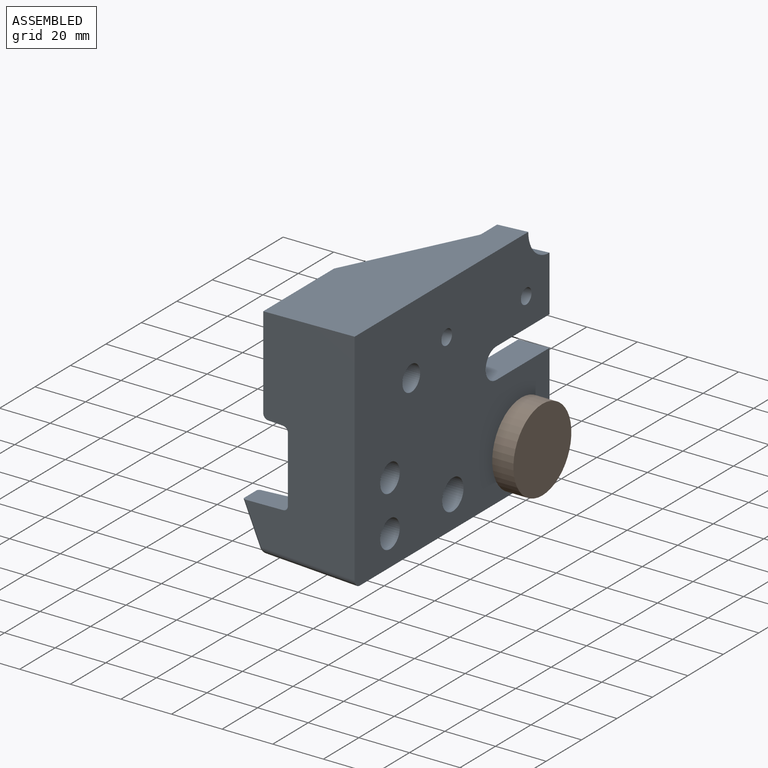
[diagram: assembled view]
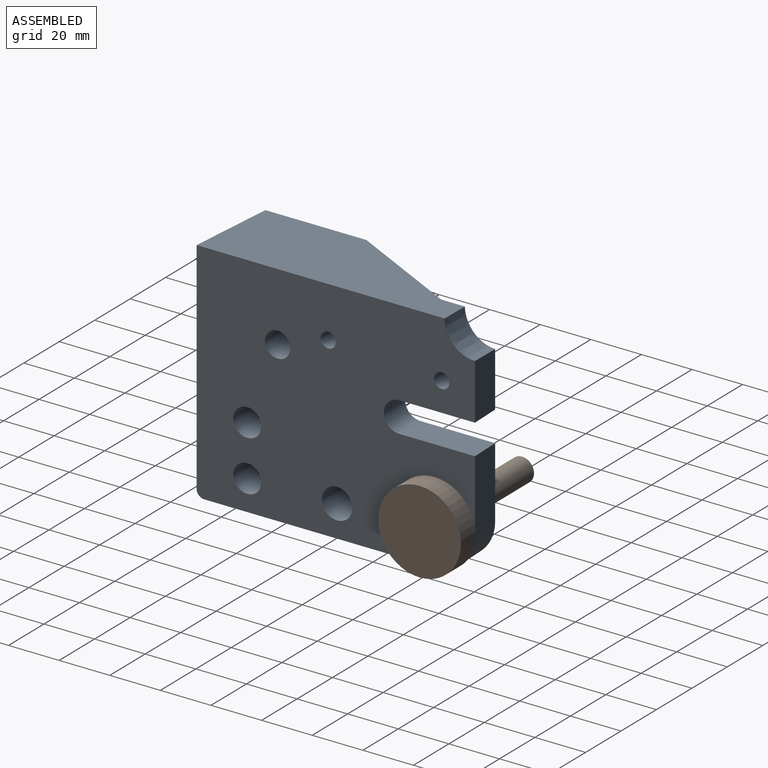
[diagram: assembled view, second angle]
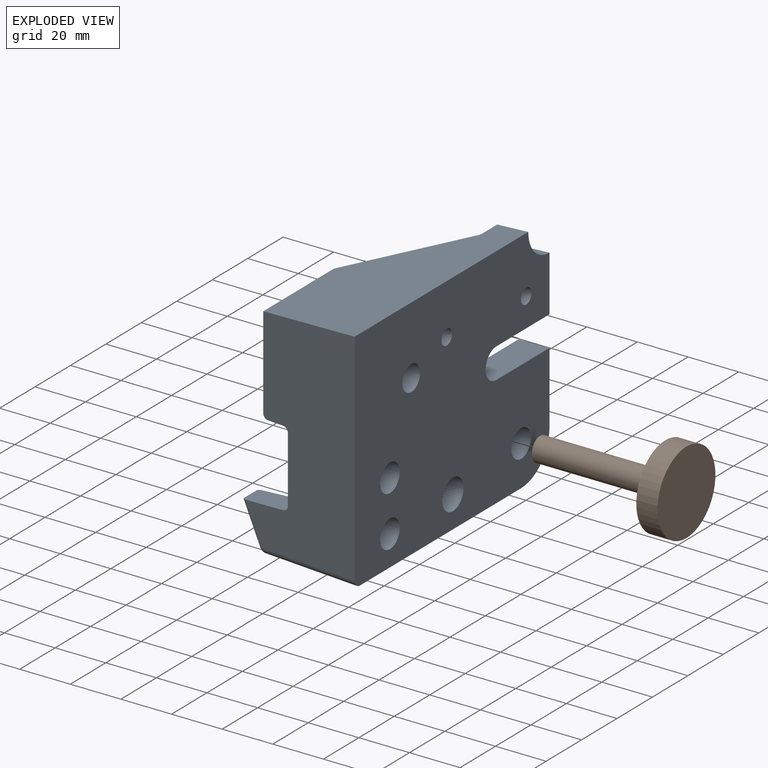
[diagram: exploded view]
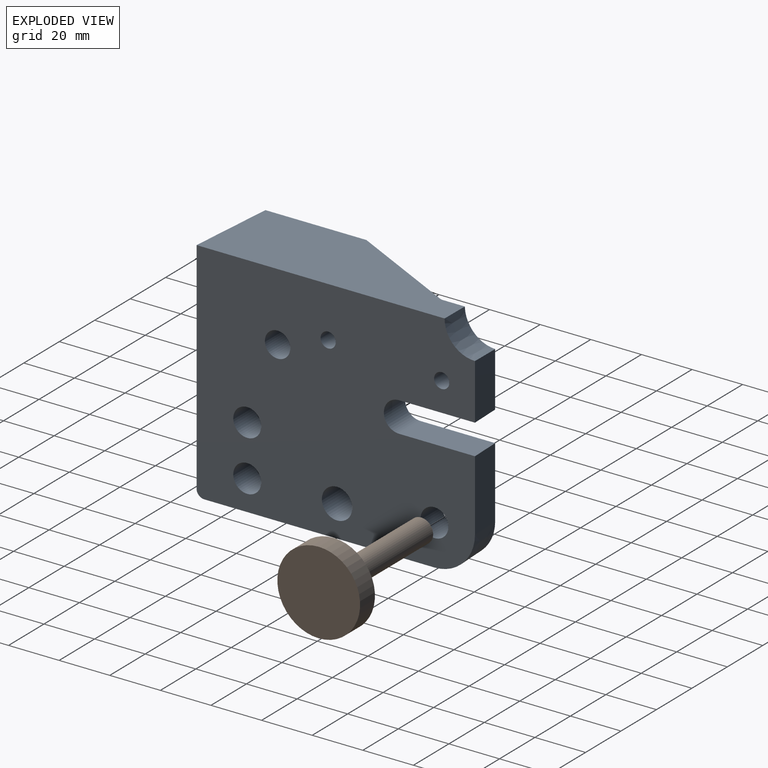
[diagram: exploded view, second angle]
ASSEMBLY  parts=2 mates=2
PART A: 70 faces, bbox 46.1x110.7x94.1 mm
  f0: cylinder r=1mm len=6.34mm, axis (0,-1,0), area 6.6mm2, adj f1,f3,f4,f7
  f1: bspline ~3.03x2.97mm, area 5.3mm2, adj f0,f2,f6,f7
  f2: cylinder r=1mm len=15.84mm, axis (0.4,-0.01,-0.92), area 25.6mm2, adj f1,f7,f8,f66
  f3: cylinder r=1mm len=18.88mm, axis (0.4,0.01,-0.92), area 29.9mm2, adj f0,f4,f5,f7,f8
  f4: plane 91.68x37.62mm, normal (-0.03,0,-1), area 1392mm2, adj f0,f3,f5,f6,f24,f25,f26,f32
  f5: plane 75.58x30.51mm, normal (-0.03,1,0), area 1495.2mm2, adj f3,f4,f8,f10,f11,f12,f13,f14
  f6: cylinder r=3mm len=37.87mm, axis (1,-0.03,-0.03), area 176.2mm2, adj f1,f4,f66,f69
  f7: plane 18.16x8.29mm, normal (-0.92,0,-0.4), area 135.3mm2, adj f0,f1,f2,f3,f8
  f8: plane 16.61x10.13mm, normal (-0.03,0,1), area 154.4mm2, adj f2,f3,f5,f7,f12,f66
  f9: cylinder r=3mm len=12mm, axis (1,0,0), area 226.2mm2, adj f25,f69
  f10: cylinder r=2mm len=9.55mm, axis (0,-1,0), area 29.1mm2, adj f5,f11,f60,f66
  f11: plane 9.98x6.11mm, normal (-0.03,0,-1), area 59.7mm2, adj f5,f10,f14,f66
  f12: cylinder r=2mm len=10.11mm, axis (0,1,0), area 30.9mm2, adj f5,f8,f13,f66
  f13: plane 26.14x10.11mm, normal (-1,0,0), area 264.3mm2, adj f5,f12,f14,f66
  f14: cylinder r=2mm len=10.11mm, axis (0,1,0), area 30.9mm2, adj f5,f11,f13,f66
  f15: cylinder r=2mm len=13.09mm, axis (0,0,-1), area 12.3mm2, adj f16,f25,f36,f44
  f16: cylinder r=2mm len=42.71mm, axis (0,-1,0), area 125.4mm2, adj f15,f17,f25,f34,f44
  f17: torus R=0.49mm, axis (1,0,0), area 8.4mm2, adj f16,f18,f25,f39
  f18: cylinder r=2mm len=13mm, axis (0,0,-1), area 39.9mm2, adj f17,f19,f25,f42
  f19: torus R=13.51mm, axis (-1,0,0), area 118mm2, adj f18,f20,f25,f45
  f20: cylinder r=2mm len=13.13mm, axis (0,-0.01,1), area 40.3mm2, adj f19,f21,f25,f40
  f21: torus R=0.49mm, axis (1,0,0), area 8.4mm2, adj f20,f22,f25,f35
  f22: cylinder r=2mm len=3.9mm, axis (0,-1,0), area 12mm2, adj f21,f23,f25,f34
  f23: torus R=0.49mm, axis (1,0,0), area 8.4mm2, adj f22,f24,f25,f43
  f24: cylinder r=2mm len=75.58mm, axis (0,0,-1), area 232.1mm2, adj f4,f5,f23,f25
  f25: plane 96.07x89.16mm, normal (-1,0,0), area 5291.6mm2, adj f4,f9,f15,f16,f17,f18,f19,f20
  f26: torus R=4.51mm, axis (-1,0,0), area 10.4mm2, adj f4,f25,f27,f46
  f27: cylinder r=2mm len=19mm, axis (0,0,1), area 58.4mm2, adj f25,f26,f28,f47
  f28: torus R=4.51mm, axis (-1,0,0), area 15.7mm2, adj f25,f27,f29,f48
  f29: cylinder r=2mm len=19mm, axis (0,1,0), area 58.4mm2, adj f25,f28,f30,f49
  f30: torus R=4.51mm, axis (-1,0,0), area 15.7mm2, adj f25,f29,f31,f50
  f31: cylinder r=2mm len=19mm, axis (0,0,-1), area 58.4mm2, adj f25,f30,f32,f51
  f32: torus R=4.51mm, axis (-1,0,0), area 10.4mm2, adj f4,f25,f31,f52
  f33: cylinder r=2mm len=28.1mm, axis (0,1,0), area 77.7mm2, adj f34,f35,f39,f41
  f34: plane 70.59x23.07mm, normal (-0.03,0,-1), area 650.6mm2, adj f16,f22,f33,f35,f39,f43,f44,f60
  f35: cone r=3.08mm half-angle=2deg, axis (-1,0,0), area 68.3mm2, adj f21,f33,f34,f40,f41
  f36: plane 98.1x37.1mm, normal (-0.03,0,1), area 2769mm2, adj f15,f25,f44,f60,f65,f66,f69
  f37: cylinder r=8mm len=16mm, axis (1,0,0), area 251.3mm2, adj f38,f41
  f38: plane 16x16mm, normal (-1,0,0), area 122.5mm2, adj f37,f53
  f39: cone r=2.49mm half-angle=2deg, axis (-1,0,0), area 68.7mm2, adj f17,f33,f34,f41,f42
  f40: plane 15.07x13.11mm, normal (-0.03,-1,-0.01), area 197.7mm2, adj f20,f35,f41,f45
  f41: plane 25.07x22.48mm, normal (-1,0,0), area 298.9mm2, adj f33,f35,f37,f39,f40,f42,f45
  f42: plane 15.07x13mm, normal (-0.03,1,0), area 196mm2, adj f18,f39,f41,f45
  f43: cone r=3.29mm half-angle=2deg, axis (-1,0,0), area 104.8mm2, adj f5,f23,f34,f60
  f44: plane 47.12x25.31mm, normal (-0.88,0.47,0), area 543.4mm2, adj f15,f16,f34,f36,f60
  f45: cone r=10.99mm half-angle=2deg, axis (1,0,0), area 531.6mm2, adj f19,f40,f41,f42
  f46: cone r=2.37mm half-angle=2deg, axis (1,0,0), area 15.6mm2, adj f4,f26,f47,f59
  f47: plane 19x4.07mm, normal (-0.03,-1,0), area 77.4mm2, adj f27,f46,f48,f59
  f48: cone r=2.37mm half-angle=2deg, axis (1,0,0), area 15.6mm2, adj f28,f47,f49,f59
  f49: plane 19x4.07mm, normal (-0.03,0,1), area 77.4mm2, adj f29,f48,f50,f59
  f50: cone r=2.37mm half-angle=2deg, axis (1,0,0), area 15.6mm2, adj f30,f49,f51,f59
  f51: plane 19x4.07mm, normal (-0.03,1,0), area 77.4mm2, adj f31,f50,f52,f59
  f52: cone r=2.37mm half-angle=2deg, axis (1,0,0), area 15.6mm2, adj f4,f32,f51,f59
  f53: cylinder r=5mm len=24mm, axis (-1,0,0), area 754mm2, adj f38,f69
  f54: cylinder r=3mm len=12mm, axis (-1,0,0), area 226.2mm2, adj f25,f69
  f55: cylinder r=5.5mm len=12mm, axis (-1,0,0), area 414.7mm2, adj f25,f69
  f56: cylinder r=5.5mm len=12mm, axis (-1,0,0), area 414.7mm2, adj f25,f69
  f57: cylinder r=5.5mm len=12mm, axis (-1,0,0), area 414.7mm2, adj f25,f69
  f58: cylinder r=6mm len=18mm, axis (-1,0,0), area 678.6mm2, adj f59,f69
  f59: plane 23.74x23.74mm, normal (-1,0,0), area 445.8mm2, adj f4,f46,f47,f48,f49,f50,f51,f52
  f60: plane 39.91x36.43mm, normal (-1,0,0), area 632.4mm2, adj f5,f10,f34,f36,f43,f44,f66
  f61: plane 29.88x12mm, normal (0,0,1), area 356.1mm2, adj f25,f62,f68,f69
  f62: cylinder r=6mm len=12mm, axis (-1,0,0), area 229mm2, adj f25,f61,f63,f69
  f63: plane 29.88x12mm, normal (0,0,-1), area 356.1mm2, adj f25,f62,f64,f69
  f64: plane 22.1x12.1mm, normal (-0.03,1,0), area 261.7mm2, adj f25,f63,f65,f69
  f65: cone r=12mm half-angle=2deg, axis (-1,0,0), area 225.3mm2, adj f25,f36,f64,f69
  f66: plane 87.07x44.44mm, normal (-0.03,-1,0), area 2934mm2, adj f2,f6,f8,f10,f11,f12,f13,f14
  f67: cone r=15.58mm half-angle=2deg, axis (1,0,0), area 297.8mm2, adj f4,f25,f68,f69
  f68: plane 28x12mm, normal (-0.03,1,0), area 336.2mm2, adj f25,f61,f67,f69
  f69: plane 110.11x90.11mm, normal (1,0,0), area 8780.3mm2, adj f4,f6,f9,f36,f53,f54,f55,f56
PART B: 5 faces, bbox 32.7x32.7x57.8 mm
  f0: plane 9.43x9.43mm, normal (0,0,-1), area 69.9mm2, adj f1
  f1: cylinder r=4.72mm len=49.45mm, axis (0,0,-1), area 1465.3mm2, adj f0,f2
  f2: plane 32.7x32.7mm, normal (0,0,-1), area 769.9mm2, adj f1,f3
  f3: cylinder r=16.35mm len=32.7mm, axis (0,0,-1), area 860.7mm2, adj f2,f4
  f4: plane 32.7x32.7mm, normal (0,0,1), area 839.8mm2, adj f3
PLACE A t=(24.72,0,0)mm
PLACE B rot(axis=(0.71,0,0.71),180deg) t=(27.28,82,-22)mm
MATE cylindrical B.f1 <-> A.f57  axis (-1,0,0) through (52,82,-22)mm
MATE planar A.f69 <-> B.f1  axis (1,0,0) through (76.72,40.67,7.43)mm
